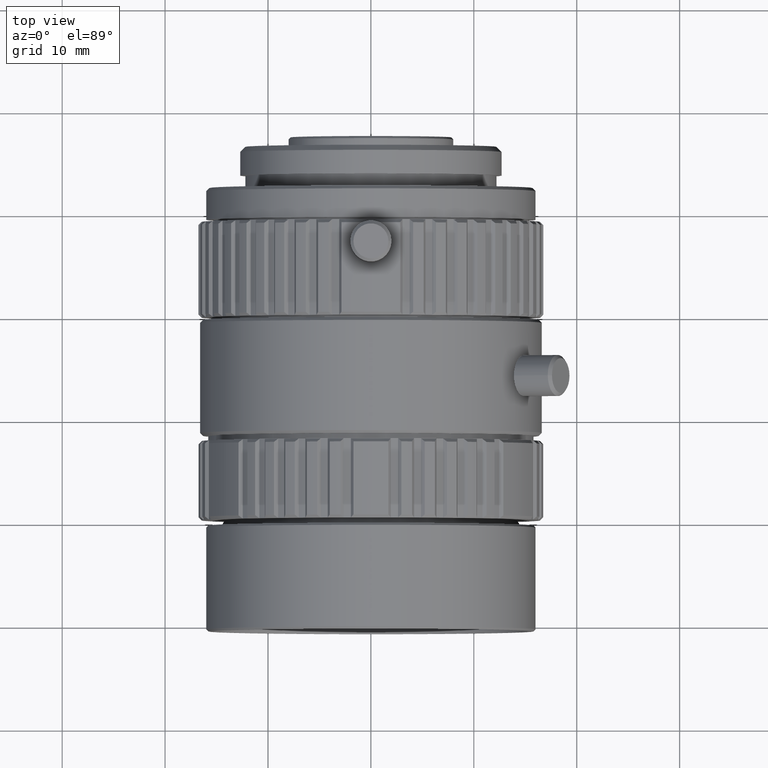
[diagram: clean part render]
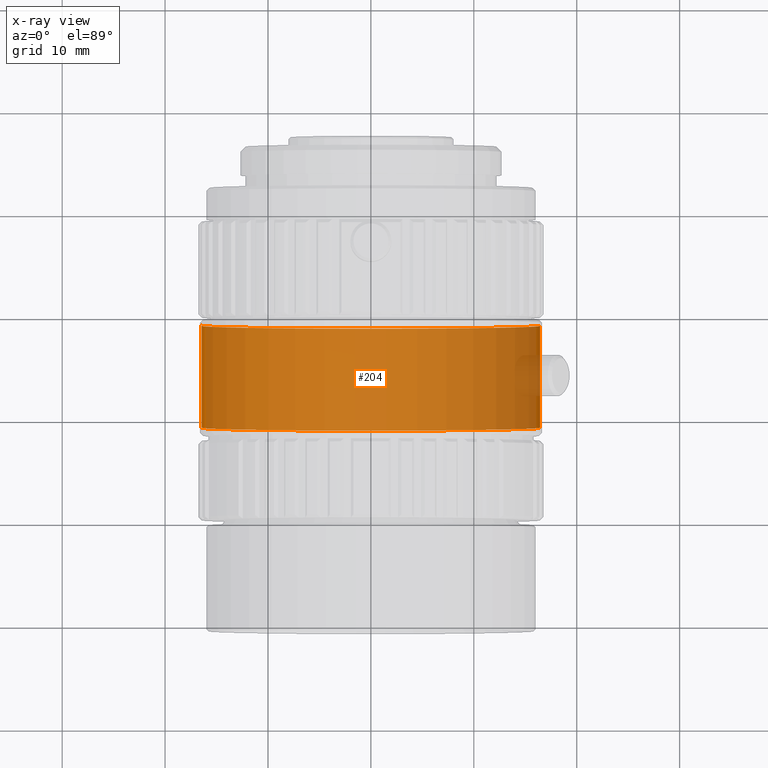
[diagram: x-ray — body ghosted, one internal face saturated and labeled with its STEP entity id]
A machine part, top view, then the same camera in x-ray: the body is ghosted and one INTERNAL B-rep face — a face not visible from any outside direction — is saturated and labeled: STEP entity #204.
In plain terms, the highlighted cylindrical surface (partial cylindrical patch) has radius 16.45 mm, axis along (0, 1, 0).
Its self-contained STEP definition (entity closure, byte-faithful):
#204=ADVANCED_FACE('0:10122',(#1422),#1423,.T.);
#1422=FACE_OUTER_BOUND('',#3753,.T.);
#1423=CYLINDRICAL_SURFACE('',#3754,0.01645);
#3753=EDGE_LOOP('',(#6448,#6449,#6450,#6451));
#3754=AXIS2_PLACEMENT_3D('',#6452,#6453,#6454);
#6448=ORIENTED_EDGE('',*,*,#14622,.T.);
#6449=ORIENTED_EDGE('',*,*,#14758,.F.);
#6450=ORIENTED_EDGE('',*,*,#14624,.T.);
#6451=ORIENTED_EDGE('',*,*,#14759,.T.);
#6452=CARTESIAN_POINT('',(-2.23184507984128E-18,-0.053976,-4.8216096913689E-17));
#6453=DIRECTION('',(0.0,1.0,-0.0));
#6454=DIRECTION('',(1.0,0.0,0.0));
#14622=EDGE_CURVE('',#17289,#17290,#17291,.T.);
#14624=EDGE_CURVE('',#17294,#17292,#17295,.T.);
#14758=EDGE_CURVE('0:11739',#17294,#17290,#17511,.T.);
#14759=EDGE_CURVE('0:11736',#17292,#17289,#17512,.T.);
#17289=VERTEX_POINT('',#21488);
#17290=VERTEX_POINT('NONE',#21489);
#17291=LINE('',#21490,#21491);
#17292=VERTEX_POINT('NONE',#21492);
#17294=VERTEX_POINT('',#21494);
#17295=LINE('',#21495,#21496);
#17511=CIRCLE('',#21825,0.01645);
#17512=CIRCLE('',#21826,0.01645);
#21488=CARTESIAN_POINT('',(0.01645,-0.030926,-4.62015529290916E-17));
#21489=CARTESIAN_POINT('',(0.01645,-0.040826,-4.8216096913689E-17));
#21490=CARTESIAN_POINT('',(0.01645,-0.035876,-4.62015529290916E-17));
#21491=VECTOR('',#26537,1.0);
#21492=CARTESIAN_POINT('',(-0.01645,-0.030926,-4.62015529290916E-17));
#21494=CARTESIAN_POINT('',(-0.01645,-0.040826,-5.02306408982864E-17));
#21495=CARTESIAN_POINT('',(-0.01645,-0.035876,-5.02306408982864E-17));
#21496=VECTOR('',#26541,1.0);
#21825=AXIS2_PLACEMENT_3D('',#26835,#26836,#26837);
#21826=AXIS2_PLACEMENT_3D('',#26838,#26839,#26840);
#26537=DIRECTION('',(-0.0,-1.0,0.0));
#26541=DIRECTION('',(0.0,1.0,0.0));
#26835=CARTESIAN_POINT('',(-1.42666640220306E-18,-0.040826,-4.8216096913689E-17));
#26836=DIRECTION('',(0.0,-1.0,0.0));
#26837=DIRECTION('',(1.0,0.0,0.0));
#26838=CARTESIAN_POINT('',(-8.20486257060992E-19,-0.030926,-4.8216096913689E-17));
#26839=DIRECTION('',(0.0,-1.0,0.0));
#26840=DIRECTION('',(1.0,0.0,0.0));